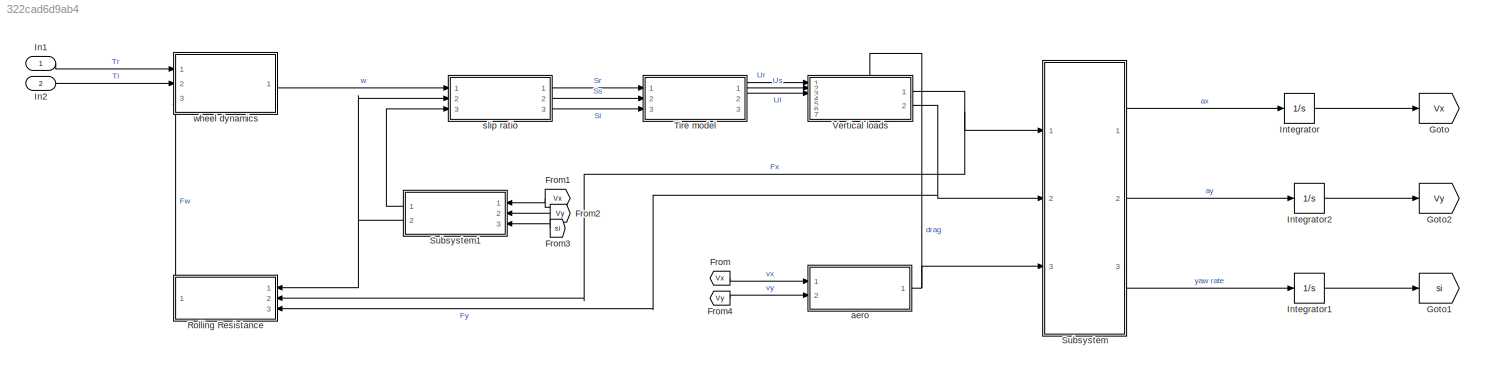
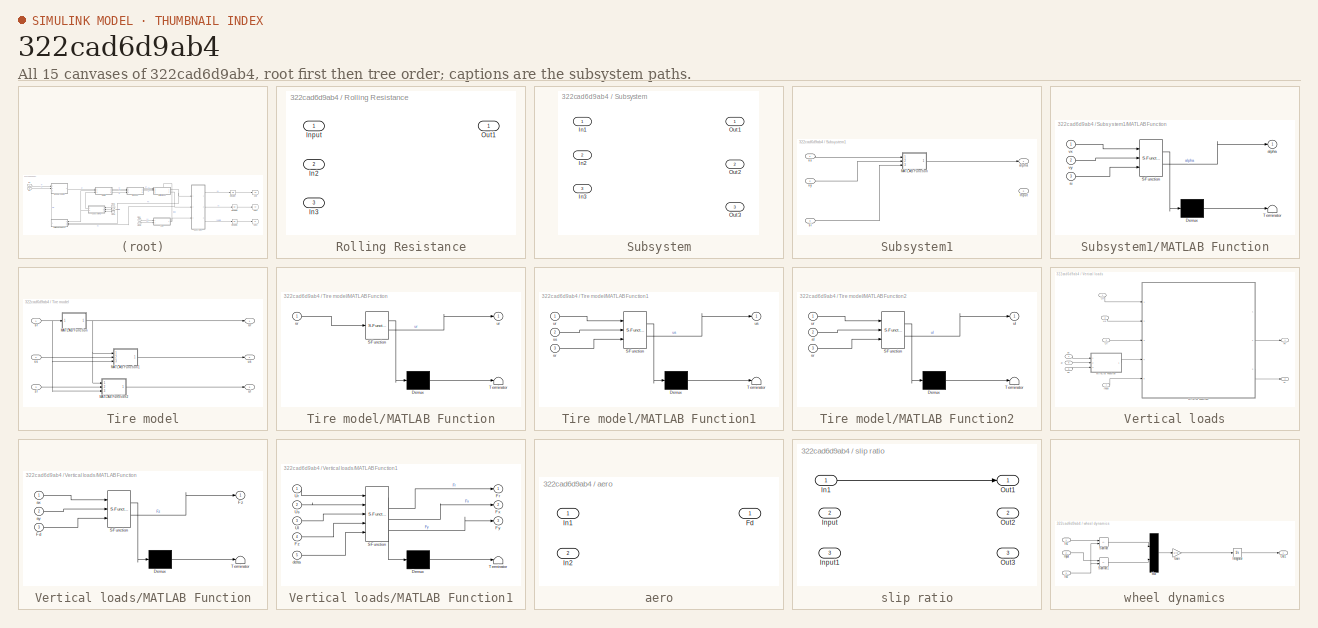
[diagram: thumbnail index - all 15 canvases of the model, root first then tree order]
MODEL slx_322cad6d9ab4
KIND model
CONFIG AbsTol = auto
CONFIG EnableMultiTasking = off
CONFIG FixedStep = auto
CONFIG MaxStep = auto
CONFIG MinStep = auto
CONFIG RelTol = 1e-3
CONFIG SampleTimeConstraint = Unconstrained
CONFIG SolverName = VariableStepAuto
CONFIG StartTime = 0.0
CONFIG StopTime = 10.0
BLOCK [From] From
  GotoTag = Vx
  TagVisibility = global
BLOCK [From] From1
  GotoTag = Vx
  TagVisibility = global
BLOCK [From] From2
  GotoTag = Vy
BLOCK [From] From3
  GotoTag = si
BLOCK [From] From4
  GotoTag = Vy
BLOCK [Goto] Goto
  GotoTag = Vx
  TagVisibility = global
BLOCK [Goto] Goto1
  GotoTag = si
BLOCK [Goto] Goto2
  GotoTag = Vy
BLOCK [Inport] In1
BLOCK [Inport] In2
  Port = 2
BLOCK [Integrator] Integrator
  Ports = [1, 1]
BLOCK [Integrator] Integrator1
  Ports = [1, 1]
BLOCK [Integrator] Integrator2
  Ports = [1, 1]
BLOCK [SubSystem] Rolling Resistance
  Ports = [3, 1]
  RequestExecContextInheritance = off
BLOCK [Inport] Rolling Resistance/In2
  Port = 2
BLOCK [Inport] Rolling Resistance/In3
  Port = 3
BLOCK [Inport] Rolling Resistance/Input
BLOCK [Outport] Rolling Resistance/Out1
BLOCK [SubSystem] Subsystem
  Ports = [3, 3]
  RequestExecContextInheritance = off
BLOCK [Inport] Subsystem/In1
BLOCK [Inport] Subsystem/In2
  Port = 2
BLOCK [Inport] Subsystem/In3
  Port = 3
BLOCK [Outport] Subsystem/Out1
BLOCK [Outport] Subsystem/Out2
  Port = 2
BLOCK [Outport] Subsystem/Out3
  Port = 3
BLOCK [SubSystem] Subsystem1
  Ports = [3, 2]
  RequestExecContextInheritance = off
BLOCK [Outport] Subsystem1/Input
  Port = 2
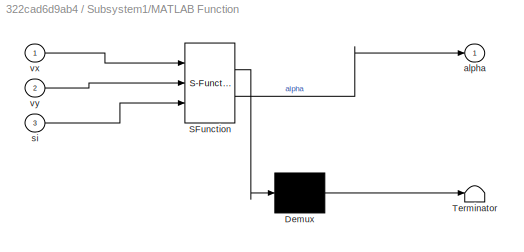
BLOCK [SubSystem] Subsystem1/MATLAB Function
  ErrorFcn = Stateflow.Translate.translate
  PermitHierarchicalResolution = ExplicitOnly
  Ports = [3, 1]
  RequestExecContextInheritance = off
  SFBlockType = MATLAB Function
  TreatAsAtomicUnit = on
BLOCK [Demux] Subsystem1/MATLAB Function/ Demux 
  Outputs = 1
  Ports = [1, 1]
BLOCK [S-Function] Subsystem1/MATLAB Function/ SFunction 
  EnableBusSupport = off
  FunctionName = sf_sfun
  PortCounts = [3 2]
  Ports = [3, 2]
  SFcnIsStateOwnerBlock = off
  SFunctionDeploymentMode = off
  Tag = Stateflow S-Function 6
BLOCK [Terminator] Subsystem1/MATLAB Function/ Terminator 
BLOCK [Outport] Subsystem1/MATLAB Function/alpha
BLOCK [Inport] Subsystem1/MATLAB Function/si
  Port = 3
BLOCK [Inport] Subsystem1/MATLAB Function/vx
BLOCK [Inport] Subsystem1/MATLAB Function/vy
  Port = 2
BLOCK [Outport] Subsystem1/alpha
BLOCK [Inport] Subsystem1/si
  Port = 3
BLOCK [Inport] Subsystem1/vx
BLOCK [Inport] Subsystem1/vy
  Port = 2
BLOCK [SubSystem] Tire model
  Ports = [3, 3]
  RequestExecContextInheritance = off
BLOCK [SubSystem] Tire model/MATLAB Function
  ErrorFcn = Stateflow.Translate.translate
  PermitHierarchicalResolution = ExplicitOnly
  Ports = [1, 1]
  RequestExecContextInheritance = off
  SFBlockType = MATLAB Function
  TreatAsAtomicUnit = on
BLOCK [Demux] Tire model/MATLAB Function/ Demux 
  Outputs = 1
  Ports = [1, 1]
BLOCK [S-Function] Tire model/MATLAB Function/ SFunction 
  EnableBusSupport = on
  FunctionName = sf_sfun
  PortCounts = [1 2]
  Ports = [1, 2]
  SFcnIsStateOwnerBlock = off
  SFunctionDeploymentMode = off
  Tag = Stateflow S-Function 2
BLOCK [Terminator] Tire model/MATLAB Function/ Terminator 
BLOCK [Inport] Tire model/MATLAB Function/sr
BLOCK [Outport] Tire model/MATLAB Function/ur
BLOCK [SubSystem] Tire model/MATLAB Function1
  ErrorFcn = Stateflow.Translate.translate
  PermitHierarchicalResolution = ExplicitOnly
  Ports = [3, 1]
  RequestExecContextInheritance = off
  SFBlockType = MATLAB Function
  TreatAsAtomicUnit = on
BLOCK [Demux] Tire model/MATLAB Function1/ Demux 
  Outputs = 1
  Ports = [1, 1]
BLOCK [S-Function] Tire model/MATLAB Function1/ SFunction 
  EnableBusSupport = on
  FunctionName = sf_sfun
  PortCounts = [3 2]
  Ports = [3, 2]
  SFcnIsStateOwnerBlock = off
  SFunctionDeploymentMode = off
  Tag = Stateflow S-Function 1
BLOCK [Terminator] Tire model/MATLAB Function1/ Terminator 
BLOCK [Inport] Tire model/MATLAB Function1/sr
  Port = 3
BLOCK [Inport] Tire model/MATLAB Function1/ss
  Port = 2
BLOCK [Inport] Tire model/MATLAB Function1/ur
BLOCK [Outport] Tire model/MATLAB Function1/us
BLOCK [SubSystem] Tire model/MATLAB Function2
  ErrorFcn = Stateflow.Translate.translate
  PermitHierarchicalResolution = ExplicitOnly
  Ports = [3, 1]
  RequestExecContextInheritance = off
  SFBlockType = MATLAB Function
  TreatAsAtomicUnit = on
BLOCK [Demux] Tire model/MATLAB Function2/ Demux 
  Outputs = 1
  Ports = [1, 1]
BLOCK [S-Function] Tire model/MATLAB Function2/ SFunction 
  EnableBusSupport = on
  FunctionName = sf_sfun
  PortCounts = [3 2]
  Ports = [3, 2]
  SFcnIsStateOwnerBlock = off
  SFunctionDeploymentMode = off
  Tag = Stateflow S-Function 3
BLOCK [Terminator] Tire model/MATLAB Function2/ Terminator 
BLOCK [Inport] Tire model/MATLAB Function2/sl
  Port = 2
BLOCK [Inport] Tire model/MATLAB Function2/sr
  Port = 3
BLOCK [Outport] Tire model/MATLAB Function2/ul
BLOCK [Inport] Tire model/MATLAB Function2/ur
BLOCK [Inport] Tire model/sl
  Port = 3
BLOCK [Inport] Tire model/sr
BLOCK [Inport] Tire model/ss
  Port = 2
BLOCK [Outport] Tire model/ul
  Port = 3
BLOCK [Outport] Tire model/ur
BLOCK [Outport] Tire model/us
  Port = 2
BLOCK [SubSystem] Vertical loads
  PortSchema = {"entries":[{"content":{"sides":[{"content":{"connectorIds":["In1","In2","In3"]},"type":"ConnectorPlacement.EquallySpacedRectSide","uuid":"c87bc92c-d52c-4e2b-afec-a565792782b9"},{"content":{"connectorIds":["Out1","Out2"],"side":"RIGHT"},"type":"ConnectorPlacement.EquallySpacedRectSide","uuid":"3567d5cd-158a-4938-8187-fe829b738e45"},{"content":{"connectorIds":["In4","In5","In6","In7"],"side":"TOP"}...<+282ch>
  Ports = [7, 2]
  RequestExecContextInheritance = off
BLOCK [Inport] Vertical loads/Fd
  Port = 6
BLOCK [Outport] Vertical loads/Fx
BLOCK [Outport] Vertical loads/Fy
  Port = 2
BLOCK [Inport] Vertical loads/Input
  Port = 7
BLOCK [SubSystem] Vertical loads/MATLAB Function
  ErrorFcn = Stateflow.Translate.translate
  PermitHierarchicalResolution = ExplicitOnly
  Ports = [3, 1]
  RequestExecContextInheritance = off
  SFBlockType = MATLAB Function
  TreatAsAtomicUnit = on
BLOCK [Demux] Vertical loads/MATLAB Function/ Demux 
  Outputs = 1
  Ports = [1, 1]
BLOCK [S-Function] Vertical loads/MATLAB Function/ SFunction 
  EnableBusSupport = on
  FunctionName = sf_sfun
  PortCounts = [3 2]
  Ports = [3, 2]
  SFcnIsStateOwnerBlock = off
  SFunctionDeploymentMode = off
  Tag = Stateflow S-Function 4
BLOCK [Terminator] Vertical loads/MATLAB Function/ Terminator 
BLOCK [Inport] Vertical loads/MATLAB Function/Fd
  Port = 3
BLOCK [Outport] Vertical loads/MATLAB Function/Fz
BLOCK [Inport] Vertical loads/MATLAB Function/ax
BLOCK [Inport] Vertical loads/MATLAB Function/ay
  Port = 2
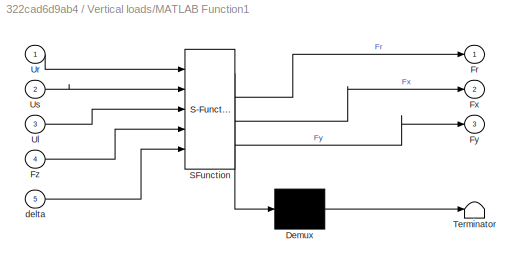
BLOCK [SubSystem] Vertical loads/MATLAB Function1
  ErrorFcn = Stateflow.Translate.translate
  PermitHierarchicalResolution = ExplicitOnly
  Ports = [5, 3]
  RequestExecContextInheritance = off
  SFBlockType = MATLAB Function
  TreatAsAtomicUnit = on
BLOCK [Demux] Vertical loads/MATLAB Function1/ Demux 
  Outputs = 1
  Ports = [1, 1]
BLOCK [S-Function] Vertical loads/MATLAB Function1/ SFunction 
  EnableBusSupport = on
  FunctionName = sf_sfun
  PortCounts = [5 4]
  Ports = [5, 4]
  SFcnIsStateOwnerBlock = off
  SFunctionDeploymentMode = off
  Tag = Stateflow S-Function 5
BLOCK [Terminator] Vertical loads/MATLAB Function1/ Terminator 
BLOCK [Outport] Vertical loads/MATLAB Function1/Fr
BLOCK [Outport] Vertical loads/MATLAB Function1/Fx
  Port = 2
BLOCK [Outport] Vertical loads/MATLAB Function1/Fy
  Port = 3
BLOCK [Inport] Vertical loads/MATLAB Function1/Fz
  Port = 4
BLOCK [Inport] Vertical loads/MATLAB Function1/Ul
  Port = 3
BLOCK [Inport] Vertical loads/MATLAB Function1/Ur
BLOCK [Inport] Vertical loads/MATLAB Function1/Us
  Port = 2
BLOCK [Inport] Vertical loads/MATLAB Function1/delta
  Port = 5
BLOCK [Inport] Vertical loads/Ul
  NameLocation = top
  Port = 3
BLOCK [Inport] Vertical loads/Ur
BLOCK [Inport] Vertical loads/Us
  Port = 2
BLOCK [Inport] Vertical loads/ax
  Port = 4
BLOCK [Inport] Vertical loads/ay
  Port = 5
BLOCK [SubSystem] aero
  Ports = [2, 1]
  RequestExecContextInheritance = off
BLOCK [Outport] aero/Fd
BLOCK [Inport] aero/In1
BLOCK [Inport] aero/In2
  Port = 2
BLOCK [SubSystem] slip ratio
  Ports = [3, 3]
  RequestExecContextInheritance = off
BLOCK [Inport] slip ratio/In1
BLOCK [Inport] slip ratio/Input
  Port = 2
BLOCK [Inport] slip ratio/Input1
  Port = 3
BLOCK [Outport] slip ratio/Out1
BLOCK [Outport] slip ratio/Out2
  Port = 2
BLOCK [Outport] slip ratio/Out3
  Port = 3
BLOCK [SubSystem] wheel dynamics
  Ports = [3, 1]
  RequestExecContextInheritance = off
BLOCK [Gain] wheel dynamics/Gain
  Gain = 1/Iw
BLOCK [Inport] wheel dynamics/In1
BLOCK [Inport] wheel dynamics/In2
  Port = 3
BLOCK [Inport] wheel dynamics/Input
  Port = 2
BLOCK [Integrator] wheel dynamics/Integrator
  Ports = [1, 1]
BLOCK [Mux] wheel dynamics/Mux
  DisplayOption = bar
  Inputs = 2
  Ports = [2, 1]
BLOCK [Outport] wheel dynamics/Out1
BLOCK [Sum] wheel dynamics/Subtract
  IconShape = rectangular
  Inputs = +-
  Ports = [2, 1]
BLOCK [Sum] wheel dynamics/Subtract1
  IconShape = rectangular
  Inputs = +-
  Ports = [2, 1]
LINE From1:1 -> Subsystem1:1
LINE From2:1 -> Subsystem1:2
LINE From3:1 -> Subsystem1:3
LINE From4:1 -> aero:2
LINE From:1 -> aero:1
LINE In1:1 -> wheel dynamics:1
LINE In2:1 -> wheel dynamics:2
LINE Integrator1:1 -> Goto1:1
LINE Integrator2:1 -> Goto2:1
LINE Integrator:1 -> Goto:1
LINE Rolling Resistance:1 -> wheel dynamics:3
LINE Subsystem1/MATLAB Function:1 -> Subsystem1/alpha:1
LINE Subsystem1/si:1 -> Subsystem1/MATLAB Function:3
LINE Subsystem1/vx:1 -> Subsystem1/MATLAB Function:1
LINE Subsystem1/vy:1 -> Subsystem1/MATLAB Function:2
LINE Subsystem1:1 -> slip ratio:3
NET Subsystem1:2 -> Rolling Resistance:1, slip ratio:2
LINE Subsystem:1 -> Integrator:1
LINE Subsystem:2 -> Integrator2:1
LINE Subsystem:3 -> Integrator1:1
LINE Tire model/MATLAB Function1:1 -> Tire model/us:1
LINE Tire model/MATLAB Function2:1 -> Tire model/ul:1
NET Tire model/MATLAB Function:1 -> Tire model/MATLAB Function1:1, Tire model/MATLAB Function2:1, Tire model/ur:1
LINE Tire model/sl:1 -> Tire model/MATLAB Function2:2
NET Tire model/sr:1 -> Tire model/MATLAB Function1:3, Tire model/MATLAB Function2:3, Tire model/MATLAB Function:1
LINE Tire model/ss:1 -> Tire model/MATLAB Function1:2
LINE Tire model:1 -> Vertical loads:1
LINE Tire model:2 -> Vertical loads:2
LINE Tire model:3 -> Vertical loads:3
LINE Vertical loads/Fd:1 -> Vertical loads/MATLAB Function:3
LINE Vertical loads/Input:1 -> Vertical loads/MATLAB Function1:5
LINE Vertical loads/MATLAB Function1:2 -> Vertical loads/Fx:1
LINE Vertical loads/MATLAB Function1:3 -> Vertical loads/Fy:1
LINE Vertical loads/MATLAB Function:1 -> Vertical loads/MATLAB Function1:4
LINE Vertical loads/Ul:1 -> Vertical loads/MATLAB Function1:3
LINE Vertical loads/Ur:1 -> Vertical loads/MATLAB Function1:1
LINE Vertical loads/Us:1 -> Vertical loads/MATLAB Function1:2
LINE Vertical loads/ax:1 -> Vertical loads/MATLAB Function:1
LINE Vertical loads/ay:1 -> Vertical loads/MATLAB Function:2
NET Vertical loads:1 -> Rolling Resistance:2, Subsystem:1
NET Vertical loads:2 -> Rolling Resistance:3, Subsystem:2
NET aero:1 -> Subsystem:3, Vertical loads:6
LINE slip ratio/In1:1 -> slip ratio/Out1:1
LINE slip ratio:1 -> Tire model:1
LINE slip ratio:2 -> Tire model:2
LINE slip ratio:3 -> Tire model:3
LINE wheel dynamics/Gain:1 -> wheel dynamics/Integrator:1
LINE wheel dynamics/In1:1 -> wheel dynamics/Subtract:1
NET wheel dynamics/In2:1 -> wheel dynamics/Subtract1:2, wheel dynamics/Subtract:2
LINE wheel dynamics/Input:1 -> wheel dynamics/Subtract1:1
LINE wheel dynamics/Integrator:1 -> wheel dynamics/Out1:1
LINE wheel dynamics/Mux:1 -> wheel dynamics/Gain:1
LINE wheel dynamics/Subtract1:1 -> wheel dynamics/Mux:2
LINE wheel dynamics/Subtract:1 -> wheel dynamics/Mux:1
LINE wheel dynamics:1 -> slip ratio:1
note: NET lines group one-source signal fan-out (src -> all destinations, sorted); 1:1 wires keep LINE
CHART Tire model/MATLAB Function1 states=1 transitions=1
  STATE_LABEL 'eML_blk_kernel()'
  STATE_LABEL 'SCRIPT:\nfunction us = fcn(ur , ss , sr)\n    us=ur.*(ss./sr);\n\n'
CHART Tire model/MATLAB Function states=1 transitions=1
  STATE_LABEL 'eML_blk_kernel()'
  STATE_LABEL 'SCRIPT:\nfunction ur = fcn(sr)\nC1=1;\nC2=1;\nC3=1;\n\n\n\nur = C1*(1-exp(-C2*sr))-C3*sr;\n'
CHART Tire model/MATLAB Function2 states=1 transitions=1
  STATE_LABEL 'eML_blk_kernel()'
  STATE_LABEL 'SCRIPT:\nfunction ul = fcn(ur , sl , sr)\n    ul=ur.*(sl./sr);\n\n'
CHART Vertical loads/MATLAB Function states=1 transitions=1
  STATE_LABEL 'eML_blk_kernel()'
  STATE_LABEL 'SCRIPT:\nfunction Fz = fcn(ax,ay,Fd)\n hcg=1;\n hd=1;\n wf=1;\n wr=1;\n twf=1;\n twr=1;\n g=9.81;\n m=229;\n Fzr= m*g*wf/(wf+wr)+(Fd*hd+m*ax*hcg)/(wf+wr);\n Fzf= m*g*wr/(wf+wr)-(Fd*hd+m*ax*hcg)/(wf+wr);\n Fzfl= (Fzf/2)*(twf/2)+ay*hcg*Fzf/g;\n Fzfr= (Fzf/2)*(twf/2)-ay*hcg*Fzf/g;\n Fzrl=(Fzr/2)*(twr/2)+ay*hcg*Fzr/g;\n Fzrr=(Fzr/2)*(twr/2)-ay*hcg*Fzr/g;\n Fz=[Fzfl Fzfr; Fzrl Fzrr];\n\n\n\n\n'
CHART Vertical loads/MATLAB Function1 states=1 transitions=1
  STATE_LABEL 'eML_blk_kernel()'
  STATE_LABEL 'SCRIPT:\nfunction [Fr,Fx,Fy] = fcn(Ur,Us,Ul,Fz, delta)\n\nQ=[cos(delta) sin(delta); -sin(delta) cos(delta)];\nFr = Ur.*Fz;\nFx1=Ul.*Fz;\nFy1=Us.*Fz;\nFf=magic(4);\nFf(1:2,1)=Transpose(Fx1(1,1:2));\nFf(1:2,2)=transpose(Fy1(1,1:2));\nFf1=Ff*Q;\nFx1(1,1:2)=transpose(Ff1(1:2,1));\nFy1(1,1:2)=transpose(Ff2(1:2,2));\nFx=sum(Fx1,"all");\nFy=sum(Fy1,"all");\n\n'
CHART Subsystem1/MATLAB Function states=1 transitions=1
  STATE_LABEL 'eML_blk_kernel()'
  STATE_LABEL 'SCRIPT:\nfunction alpha = fcn(vx,vy,si)\nxi=[wbf wbf; -wbr -wbr];\nyi=tw/2*[1 -1; 1 -1];\nratio=atan((vy+xi*si)./(vx-yi*si));\nalpha=ratio-delta;\n'
CHART  states=0 transitions=0
CHART  states=0 transitions=0
CHART  states=0 transitions=0
CHART  states=0 transitions=0
CHART  states=0 transitions=0
CHART  states=0 transitions=0
